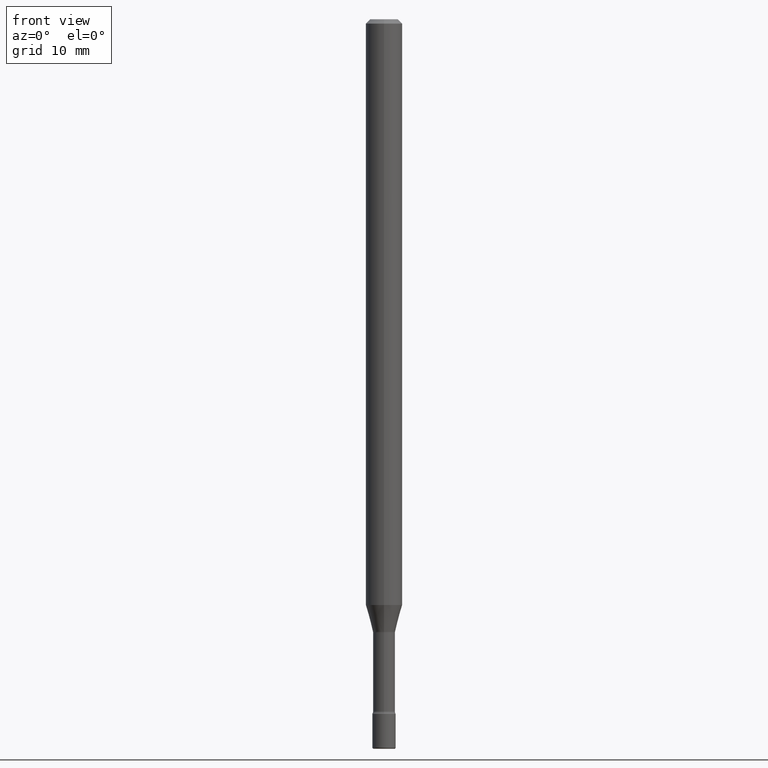
[diagram: clean part render]
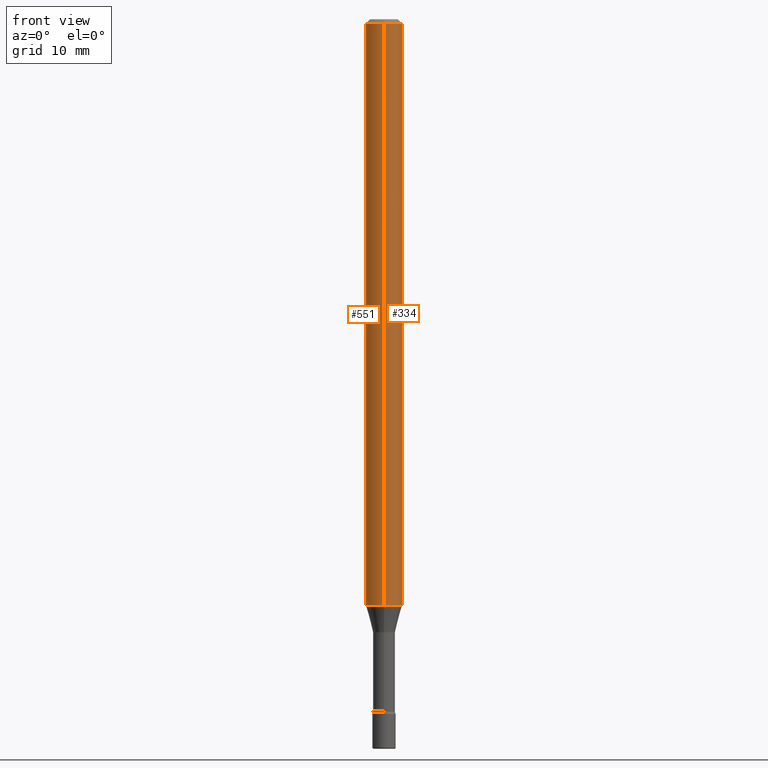
[diagram: same view with one multi-face feature highlighted, each face labeled with its STEP entity id]
A machine part, front view. The highlighted faces form ONE feature: a constant-radius fillet chain: 2 tangent blend faces with common blend radius 1.5875 mm. The faces share edges in the B-rep.
Their STEP definitions:
[1] entity #334 (Cylinder):
#10 = CIRCLE ( 'NONE', #81, 0.06250000000000000000 ) ;
#11 = VECTOR ( 'NONE', #363, 39.37007874015748143 ) ;
#16 = CIRCLE ( 'NONE', #142, 0.06250000000000000000 ) ;
#18 = VERTEX_POINT ( 'NONE', #417 ) ;
#19 = CARTESIAN_POINT ( 'NONE',  ( 4.440892098500625669E-16, 0.06250000000000000000, 2.598470754388820311E-16 ) ) ;
#25 = CARTESIAN_POINT ( 'NONE',  ( -4.364351673553427600E-16, -0.06250000000000703604, -2.007071934891535125 ) ) ;
#43 = ORIENTED_EDGE ( 'NONE', *, *, #273, .F. ) ;
#52 = CYLINDRICAL_SURFACE ( 'NONE', #414, 0.06250000000000000000 ) ;
#66 = LINE ( 'NONE', #19, #11 ) ;
#81 = AXIS2_PLACEMENT_3D ( 'NONE', #339, #570, #301 ) ;
#102 = VERTEX_POINT ( 'NONE', #25 ) ;
#108 = ORIENTED_EDGE ( 'NONE', *, *, #521, .T. ) ;
#142 = AXIS2_PLACEMENT_3D ( 'NONE', #230, #270, #275 ) ;
#153 = ORIENTED_EDGE ( 'NONE', *, *, #372, .F. ) ;
#156 = VERTEX_POINT ( 'NONE', #295 ) ;
#185 = DIRECTION ( 'NONE',  ( -2.445371158952634038E-29, 3.491621175237824120E-15, 1.000000000000000000 ) ) ;
#186 = LINE ( 'NONE', #229, #438 ) ;
#229 = CARTESIAN_POINT ( 'NONE',  ( -4.364351673553916201E-16, -0.06250000000000000000, 6.962997223436100461E-16 ) ) ;
#230 = CARTESIAN_POINT ( 'NONE',  ( 4.908035823527020154E-29, -7.007934868092835849E-15, -2.007071934891535125 ) ) ;
#245 = ORIENTED_EDGE ( 'NONE', *, *, #399, .T. ) ;
#270 = DIRECTION ( 'NONE',  ( -2.445371158952634318E-29, 3.491621175237824120E-15, 1.000000000000000000 ) ) ;
#273 = EDGE_CURVE ( 'NONE', #390, #156, #10, .T. ) ;
#275 = DIRECTION ( 'NONE',  ( -6.982962677686265922E-15, -1.000000000000000000, 4.370956789862821150E-15 ) ) ;
#295 = CARTESIAN_POINT ( 'NONE',  ( 4.440892098501120186E-16, 0.06249999999999995143, -0.01500000000000024578 ) ) ;
#301 = DIRECTION ( 'NONE',  ( -6.982962677686265922E-15, -1.000000000000000000, 3.483106191921935554E-15 ) ) ;
#312 = DIRECTION ( 'NONE',  ( -6.982962677686265922E-15, -1.000000000000000000, 3.491621175237823726E-15 ) ) ;
#334 = ADVANCED_FACE ( 'NONE', ( #457 ), #52, .T. ) ;
#339 = CARTESIAN_POINT ( 'NONE',  ( 3.668056738428958326E-31, -5.237431762856745967E-17, -0.01500000000000002720 ) ) ;
#363 = DIRECTION ( 'NONE',  ( -2.445371158952634038E-29, 3.491621175237824120E-15, 1.000000000000000000 ) ) ;
#372 = EDGE_CURVE ( 'NONE', #102, #390, #186, .T. ) ;
#390 = VERTEX_POINT ( 'NONE', #543 ) ;
#399 = EDGE_CURVE ( 'NONE', #102, #18, #16, .T. ) ;
#414 = AXIS2_PLACEMENT_3D ( 'NONE', #538, #493, #312 ) ;
#417 = CARTESIAN_POINT ( 'NONE',  ( 4.440892098501113283E-16, 0.06249999999999295702, -2.007071934891535570 ) ) ;
#438 = VECTOR ( 'NONE', #185, 39.37007874015748143 ) ;
#457 = FACE_OUTER_BOUND ( 'NONE', #500, .T. ) ;
#493 = DIRECTION ( 'NONE',  ( -2.445371158952634318E-29, 3.491621175237824120E-15, 1.000000000000000000 ) ) ;
#500 = EDGE_LOOP ( 'NONE', ( #245, #108, #43, #153 ) ) ;
#521 = EDGE_CURVE ( 'NONE', #18, #156, #66, .T. ) ;
#538 = CARTESIAN_POINT ( 'NONE',  ( -1.169113584055446105E-44, 1.669184350826100908E-30, 4.780733988912460139E-16 ) ) ;
#543 = CARTESIAN_POINT ( 'NONE',  ( -4.364351673553912750E-16, -0.06250000000000005551, -0.01499999999999981036 ) ) ;
#570 = DIRECTION ( 'NONE',  ( -2.445371158952634318E-29, 3.491621175237824120E-15, 1.000000000000000000 ) ) ;
[2] entity #551 (Cylinder):
#11 = VECTOR ( 'NONE', #363, 39.37007874015748143 ) ;
#14 = ORIENTED_EDGE ( 'NONE', *, *, #521, .F. ) ;
#18 = VERTEX_POINT ( 'NONE', #417 ) ;
#19 = CARTESIAN_POINT ( 'NONE',  ( 4.440892098500625669E-16, 0.06250000000000000000, 2.598470754388820311E-16 ) ) ;
#25 = CARTESIAN_POINT ( 'NONE',  ( -4.364351673553427600E-16, -0.06250000000000703604, -2.007071934891535125 ) ) ;
#59 = ORIENTED_EDGE ( 'NONE', *, *, #535, .F. ) ;
#61 = CIRCLE ( 'NONE', #210, 0.06250000000000000000 ) ;
#66 = LINE ( 'NONE', #19, #11 ) ;
#73 = CARTESIAN_POINT ( 'NONE',  ( 3.668056738428958326E-31, -5.237431762856745967E-17, -0.01500000000000002720 ) ) ;
#102 = VERTEX_POINT ( 'NONE', #25 ) ;
#130 = EDGE_LOOP ( 'NONE', ( #14, #293, #316, #59 ) ) ;
#156 = VERTEX_POINT ( 'NONE', #295 ) ;
#157 = DIRECTION ( 'NONE',  ( -2.445371158952634318E-29, 3.491621175237824120E-15, 1.000000000000000000 ) ) ;
#185 = DIRECTION ( 'NONE',  ( -2.445371158952634038E-29, 3.491621175237824120E-15, 1.000000000000000000 ) ) ;
#186 = LINE ( 'NONE', #229, #438 ) ;
#210 = AXIS2_PLACEMENT_3D ( 'NONE', #336, #326, #321 ) ;
#229 = CARTESIAN_POINT ( 'NONE',  ( -4.364351673553916201E-16, -0.06250000000000000000, 6.962997223436100461E-16 ) ) ;
#263 = CIRCLE ( 'NONE', #534, 0.06250000000000000000 ) ;
#267 = AXIS2_PLACEMENT_3D ( 'NONE', #462, #157, #282 ) ;
#282 = DIRECTION ( 'NONE',  ( -6.982962677686265922E-15, -1.000000000000000000, 3.491621175237823726E-15 ) ) ;
#293 = ORIENTED_EDGE ( 'NONE', *, *, #464, .T. ) ;
#295 = CARTESIAN_POINT ( 'NONE',  ( 4.440892098501120186E-16, 0.06249999999999995143, -0.01500000000000024578 ) ) ;
#316 = ORIENTED_EDGE ( 'NONE', *, *, #372, .T. ) ;
#321 = DIRECTION ( 'NONE',  ( -6.982962677686265922E-15, -1.000000000000000000, 4.370956789862821150E-15 ) ) ;
#323 = DIRECTION ( 'NONE',  ( -2.445371158952634318E-29, 3.491621175237824120E-15, 1.000000000000000000 ) ) ;
#326 = DIRECTION ( 'NONE',  ( -2.445371158952634318E-29, 3.491621175237824120E-15, 1.000000000000000000 ) ) ;
#336 = CARTESIAN_POINT ( 'NONE',  ( 4.908035823527020154E-29, -7.007934868092835849E-15, -2.007071934891535125 ) ) ;
#363 = DIRECTION ( 'NONE',  ( -2.445371158952634038E-29, 3.491621175237824120E-15, 1.000000000000000000 ) ) ;
#365 = FACE_OUTER_BOUND ( 'NONE', #130, .T. ) ;
#372 = EDGE_CURVE ( 'NONE', #102, #390, #186, .T. ) ;
#390 = VERTEX_POINT ( 'NONE', #543 ) ;
#417 = CARTESIAN_POINT ( 'NONE',  ( 4.440892098501113283E-16, 0.06249999999999295702, -2.007071934891535570 ) ) ;
#438 = VECTOR ( 'NONE', #185, 39.37007874015748143 ) ;
#462 = CARTESIAN_POINT ( 'NONE',  ( -1.169113584055446105E-44, 1.669184350826100908E-30, 4.780733988912460139E-16 ) ) ;
#464 = EDGE_CURVE ( 'NONE', #18, #102, #61, .T. ) ;
#505 = CYLINDRICAL_SURFACE ( 'NONE', #267, 0.06250000000000000000 ) ;
#521 = EDGE_CURVE ( 'NONE', #18, #156, #66, .T. ) ;
#534 = AXIS2_PLACEMENT_3D ( 'NONE', #73, #323, #548 ) ;
#535 = EDGE_CURVE ( 'NONE', #156, #390, #263, .T. ) ;
#543 = CARTESIAN_POINT ( 'NONE',  ( -4.364351673553912750E-16, -0.06250000000000005551, -0.01499999999999981036 ) ) ;
#548 = DIRECTION ( 'NONE',  ( -6.982962677686265922E-15, -1.000000000000000000, 3.483106191921935554E-15 ) ) ;
#551 = ADVANCED_FACE ( 'NONE', ( #365 ), #505, .T. ) ;